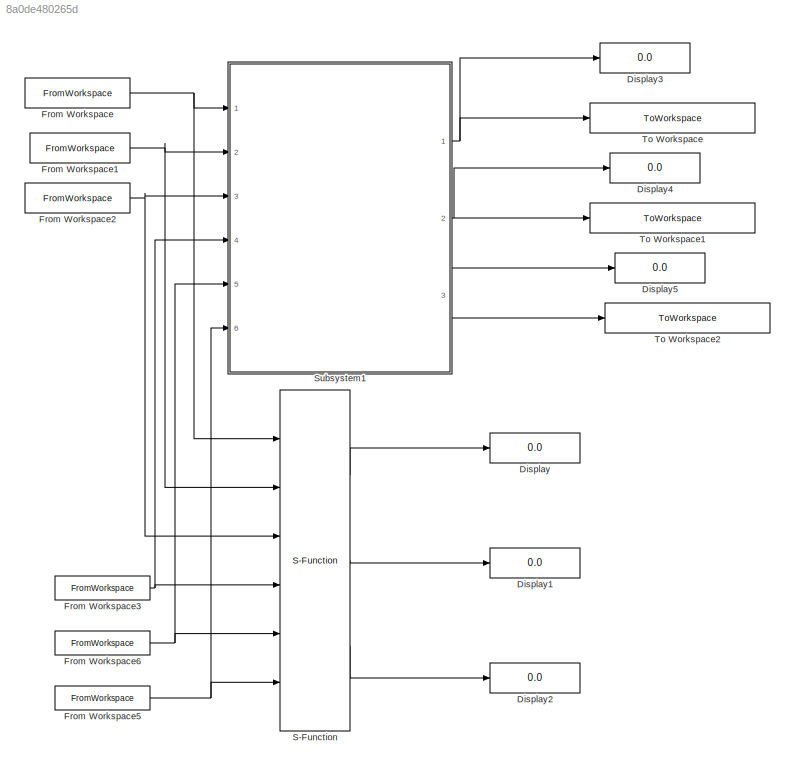
MODEL slx_8a0de480265d
KIND model
CONFIG AbsTol = auto
CONFIG EnableMultiTasking = off
CONFIG FixedStep = 1
CONFIG MaxStep = auto
CONFIG MinStep = auto
CONFIG RelTol = 1e-3
CONFIG SampleTimeConstraint = Unconstrained
CONFIG Solver = FixedStepDiscrete
CONFIG SolverName = FixedStepDiscrete
CONFIG StartTime = 0.0
CONFIG StopTime = 12
BLOCK [Display] Display
  Decimation = 1
  Ports = [1]
BLOCK [Display] Display1
  Decimation = 1
  Ports = [1]
BLOCK [Display] Display2
  Decimation = 1
  Ports = [1]
BLOCK [Display] Display3
  Decimation = 1
  Ports = [1]
BLOCK [Display] Display4
  Decimation = 1
  Ports = [1]
BLOCK [Display] Display5
  Decimation = 1
  Ports = [1]
BLOCK [FromWorkspace] From Workspace
  SampleTime = 0
  VariableName = soot_Deposition
  ZeroCross = on
BLOCK [FromWorkspace] From Workspace1
  SampleTime = 0
  VariableName = Push_button
  ZeroCross = on
BLOCK [FromWorkspace] From Workspace2
  SampleTime = 0
  VariableName = Accelerator_pedal
  ZeroCross = on
BLOCK [FromWorkspace] From Workspace3
  SampleTime = 0
  VariableName = brake_peadal
  ZeroCross = on
BLOCK [FromWorkspace] From Workspace5
  SampleTime = 0
  VariableName = SCR_bed_Temp
  ZeroCross = on
BLOCK [FromWorkspace] From Workspace6
  SampleTime = 0
  VariableName = clutch_pedal
  ZeroCross = on
BLOCK [S-Function] S-Function
  EnableBusSupport = off
  FunctionName = Subsystem1_sf
  Ports = [6, 3]
  SFcnIsStateOwnerBlock = on
  SFcnStateName = DWORK0
  SFunctionDeploymentMode = off
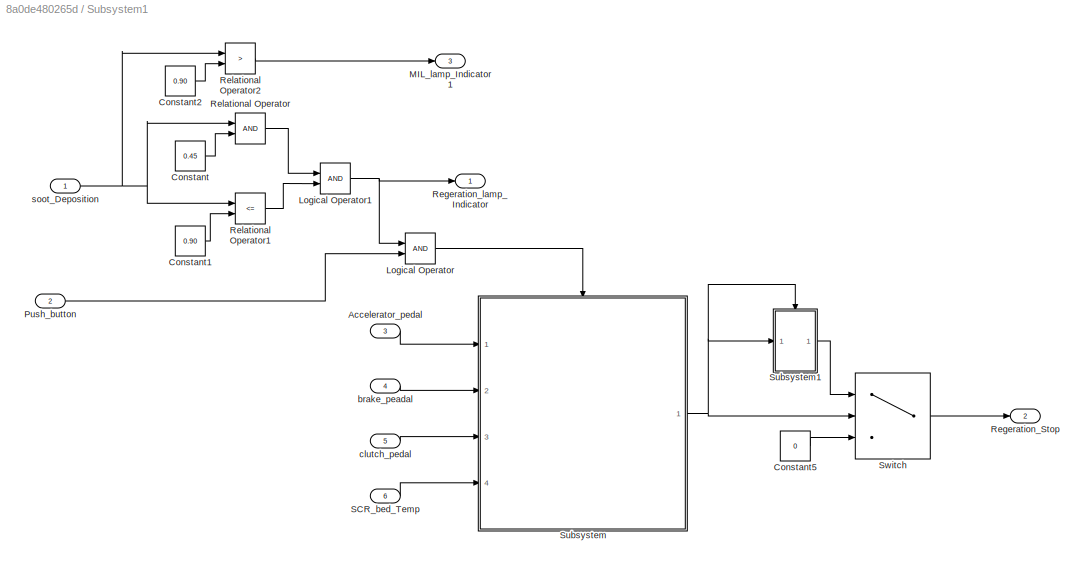
BLOCK [SubSystem] Subsystem1
  Ports = [6, 3]
  RequestExecContextInheritance = off
  TreatAsAtomicUnit = on
BLOCK [Inport] Subsystem1/Accelerator_pedal
  IconDisplay = Port number
  Port = 3
BLOCK [Constant] Subsystem1/Constant
  Value = 0.45
BLOCK [Constant] Subsystem1/Constant1
  Value = 0.90
BLOCK [Constant] Subsystem1/Constant2
  Value = 0.90
BLOCK [Constant] Subsystem1/Constant5
  Value = 0
BLOCK [Logic] Subsystem1/Logical Operator
  AllPortsSameDT = off
  OutDataTypeStr = boolean
  Ports = [2, 1]
BLOCK [Logic] Subsystem1/Logical Operator1
  AllPortsSameDT = off
  OutDataTypeStr = boolean
  Ports = [2, 1]
BLOCK [Outport] Subsystem1/MIL_lamp_Indicator1
  IconDisplay = Port number
  Port = 3
BLOCK [Inport] Subsystem1/Push_button
  IconDisplay = Port number
  Port = 2
BLOCK [Outport] Subsystem1/Regeration_Stop
  IconDisplay = Port number
  Port = 2
BLOCK [Outport] Subsystem1/Regeration_lamp_Indicator
  IconDisplay = Port number
BLOCK [RelationalOperator] Subsystem1/Relational Operator
  InputSameDT = off
  OutDataTypeStr = boolean
  Ports = [2, 1]
  RndMeth = Simplest
BLOCK [RelationalOperator] Subsystem1/Relational Operator1
  InputSameDT = off
  Operator = <=
  OutDataTypeStr = boolean
  Ports = [2, 1]
  RndMeth = Simplest
BLOCK [RelationalOperator] Subsystem1/Relational Operator2
  InputSameDT = off
  Operator = >
  OutDataTypeStr = boolean
  Ports = [2, 1]
  RndMeth = Simplest
BLOCK [Inport] Subsystem1/SCR_bed_Temp
  IconDisplay = Port number
  Port = 6
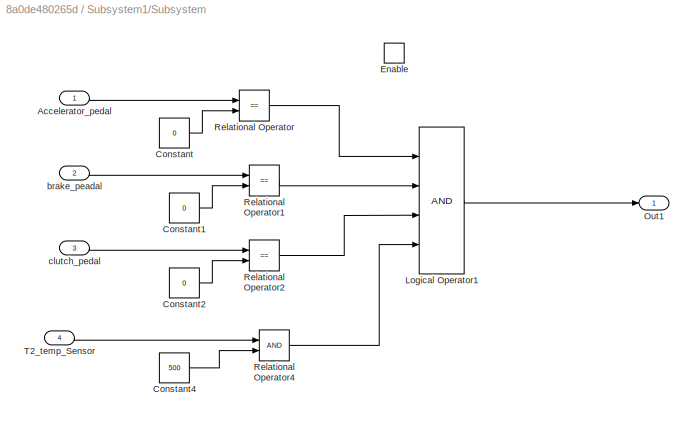
BLOCK [SubSystem] Subsystem1/Subsystem
  Ports = [4, 1, 1]
  RequestExecContextInheritance = off
BLOCK [Inport] Subsystem1/Subsystem/Accelerator_pedal
  IconDisplay = Port number
BLOCK [Constant] Subsystem1/Subsystem/Constant
  Value = 0
BLOCK [Constant] Subsystem1/Subsystem/Constant1
  Value = 0
BLOCK [Constant] Subsystem1/Subsystem/Constant2
  Value = 0
BLOCK [Constant] Subsystem1/Subsystem/Constant4
  Value = 500
BLOCK [EnablePort] Subsystem1/Subsystem/Enable
  Ports = []
  StatesWhenEnabling = reset
BLOCK [Logic] Subsystem1/Subsystem/Logical Operator1
  AllPortsSameDT = off
  Inputs = 4
  OutDataTypeStr = boolean
  Ports = [4, 1]
BLOCK [Outport] Subsystem1/Subsystem/Out1
  IconDisplay = Port number
BLOCK [RelationalOperator] Subsystem1/Subsystem/Relational Operator
  InputSameDT = off
  Operator = ==
  OutDataTypeStr = boolean
  Ports = [2, 1]
  RndMeth = Simplest
BLOCK [RelationalOperator] Subsystem1/Subsystem/Relational Operator1
  InputSameDT = off
  Operator = ==
  OutDataTypeStr = boolean
  Ports = [2, 1]
  RndMeth = Simplest
BLOCK [RelationalOperator] Subsystem1/Subsystem/Relational Operator2
  InputSameDT = off
  Operator = ==
  OutDataTypeStr = boolean
  Ports = [2, 1]
  RndMeth = Simplest
BLOCK [RelationalOperator] Subsystem1/Subsystem/Relational Operator4
  InputSameDT = off
  OutDataTypeStr = boolean
  Ports = [2, 1]
  RndMeth = Simplest
BLOCK [Inport] Subsystem1/Subsystem/T2_temp_Sensor
  IconDisplay = Port number
  Port = 4
BLOCK [Inport] Subsystem1/Subsystem/brake_peadal 
  IconDisplay = Port number
  Port = 2
BLOCK [Inport] Subsystem1/Subsystem/clutch_pedal
  IconDisplay = Port number
  Port = 3
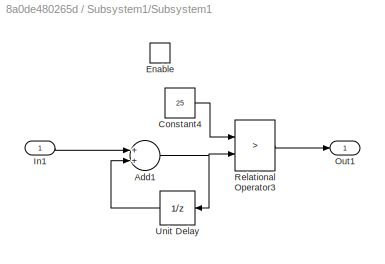
BLOCK [SubSystem] Subsystem1/Subsystem1
  Ports = [1, 1, 1]
  RequestExecContextInheritance = off
BLOCK [Sum] Subsystem1/Subsystem1/Add1
  InputSameDT = off
  OutDataTypeStr = int8
  Ports = [2, 1]
  SaturateOnIntegerOverflow = off
BLOCK [Constant] Subsystem1/Subsystem1/Constant4
  Value = 25
BLOCK [EnablePort] Subsystem1/Subsystem1/Enable
  Ports = []
  StatesWhenEnabling = reset
BLOCK [Inport] Subsystem1/Subsystem1/In1
  IconDisplay = Port number
BLOCK [Outport] Subsystem1/Subsystem1/Out1
  IconDisplay = Port number
BLOCK [RelationalOperator] Subsystem1/Subsystem1/Relational Operator3
  InputSameDT = off
  Operator = >
  OutDataTypeStr = boolean
  Ports = [2, 1]
  RndMeth = Simplest
BLOCK [UnitDelay] Subsystem1/Subsystem1/Unit Delay
  InputProcessing = Elements as channels (sample based)
  SampleTime = -1
BLOCK [Switch] Subsystem1/Switch
  Criteria = u2 > Threshold
  InputSameDT = off
  SaturateOnIntegerOverflow = off
BLOCK [Inport] Subsystem1/brake_peadal 
  IconDisplay = Port number
  Port = 4
BLOCK [Inport] Subsystem1/clutch_pedal
  IconDisplay = Port number
  Port = 5
BLOCK [Inport] Subsystem1/soot_Deposition
  IconDisplay = Port number
BLOCK [ToWorkspace] To Workspace
  FixptAsFi = on
  MaxDataPoints = inf
  Ports = [1]
  SampleTime = -1
  Save2DSignal = 3-D array (concatenate along third dimension)
  SaveFormat = Timeseries
  VariableName = Regeration_lamp_Indicator_actual
BLOCK [ToWorkspace] To Workspace1
  FixptAsFi = on
  MaxDataPoints = inf
  Ports = [1]
  SampleTime = -1
  Save2DSignal = 3-D array (concatenate along third dimension)
  SaveFormat = Timeseries
  VariableName = Regeration_Stop_actual
BLOCK [ToWorkspace] To Workspace2
  FixptAsFi = on
  MaxDataPoints = inf
  Ports = [1]
  SampleTime = -1
  Save2DSignal = 3-D array (concatenate along third dimension)
  SaveFormat = Timeseries
  VariableName = MIL_lamp_Indicator1_actual
NET From Workspace1:1 -> S-Function:2, Subsystem1:2
NET From Workspace2:1 -> S-Function:3, Subsystem1:3
NET From Workspace3:1 -> S-Function:4, Subsystem1:4
NET From Workspace5:1 -> S-Function:6, Subsystem1:6
NET From Workspace6:1 -> S-Function:5, Subsystem1:5
NET From Workspace:1 -> S-Function:1, Subsystem1:1
LINE S-Function:1 -> Display:1
LINE S-Function:2 -> Display1:1
LINE S-Function:3 -> Display2:1
LINE Subsystem1/Accelerator_pedal:1 -> Subsystem1/Subsystem:1
LINE Subsystem1/Constant1:1 -> Subsystem1/Relational Operator1:2
LINE Subsystem1/Constant2:1 -> Subsystem1/Relational Operator2:2
LINE Subsystem1/Constant5:1 -> Subsystem1/Switch:3
LINE Subsystem1/Constant:1 -> Subsystem1/Relational Operator:2
NET Subsystem1/Logical Operator1:1 -> Subsystem1/Logical Operator:1, Subsystem1/Regeration_lamp_Indicator:1
LINE Subsystem1/Logical Operator:1 -> Subsystem1/Subsystem:enable
LINE Subsystem1/Push_button:1 -> Subsystem1/Logical Operator:2
LINE Subsystem1/Relational Operator1:1 -> Subsystem1/Logical Operator1:2
LINE Subsystem1/Relational Operator2:1 -> Subsystem1/MIL_lamp_Indicator1:1
LINE Subsystem1/Relational Operator:1 -> Subsystem1/Logical Operator1:1
LINE Subsystem1/SCR_bed_Temp:1 -> Subsystem1/Subsystem:4
LINE Subsystem1/Subsystem/Accelerator_pedal:1 -> Subsystem1/Subsystem/Relational Operator:1
LINE Subsystem1/Subsystem/Constant1:1 -> Subsystem1/Subsystem/Relational Operator1:2
LINE Subsystem1/Subsystem/Constant2:1 -> Subsystem1/Subsystem/Relational Operator2:2
LINE Subsystem1/Subsystem/Constant4:1 -> Subsystem1/Subsystem/Relational Operator4:2
LINE Subsystem1/Subsystem/Constant:1 -> Subsystem1/Subsystem/Relational Operator:2
LINE Subsystem1/Subsystem/Logical Operator1:1 -> Subsystem1/Subsystem/Out1:1
LINE Subsystem1/Subsystem/Relational Operator1:1 -> Subsystem1/Subsystem/Logical Operator1:2
LINE Subsystem1/Subsystem/Relational Operator2:1 -> Subsystem1/Subsystem/Logical Operator1:3
LINE Subsystem1/Subsystem/Relational Operator4:1 -> Subsystem1/Subsystem/Logical Operator1:4
LINE Subsystem1/Subsystem/Relational Operator:1 -> Subsystem1/Subsystem/Logical Operator1:1
LINE Subsystem1/Subsystem/T2_temp_Sensor:1 -> Subsystem1/Subsystem/Relational Operator4:1
LINE Subsystem1/Subsystem/brake_peadal :1 -> Subsystem1/Subsystem/Relational Operator1:1
LINE Subsystem1/Subsystem/clutch_pedal:1 -> Subsystem1/Subsystem/Relational Operator2:1
NET Subsystem1/Subsystem1/Add1:1 -> Subsystem1/Subsystem1/Relational Operator3:2, Subsystem1/Subsystem1/Unit Delay:1
LINE Subsystem1/Subsystem1/Constant4:1 -> Subsystem1/Subsystem1/Relational Operator3:1
LINE Subsystem1/Subsystem1/In1:1 -> Subsystem1/Subsystem1/Add1:1
LINE Subsystem1/Subsystem1/Relational Operator3:1 -> Subsystem1/Subsystem1/Out1:1
LINE Subsystem1/Subsystem1/Unit Delay:1 -> Subsystem1/Subsystem1/Add1:2
LINE Subsystem1/Subsystem1:1 -> Subsystem1/Switch:1
NET Subsystem1/Subsystem:1 -> Subsystem1/Subsystem1:1, Subsystem1/Subsystem1:enable, Subsystem1/Switch:2
LINE Subsystem1/Switch:1 -> Subsystem1/Regeration_Stop:1
LINE Subsystem1/brake_peadal :1 -> Subsystem1/Subsystem:2
LINE Subsystem1/clutch_pedal:1 -> Subsystem1/Subsystem:3
NET Subsystem1/soot_Deposition:1 -> Subsystem1/Relational Operator1:1, Subsystem1/Relational Operator2:1, Subsystem1/Relational Operator:1
NET Subsystem1:1 -> Display3:1, To Workspace:1
NET Subsystem1:2 -> Display4:1, To Workspace1:1
NET Subsystem1:3 -> Display5:1, To Workspace2:1
note: NET lines group one-source signal fan-out (src -> all destinations, sorted); 1:1 wires keep LINE
